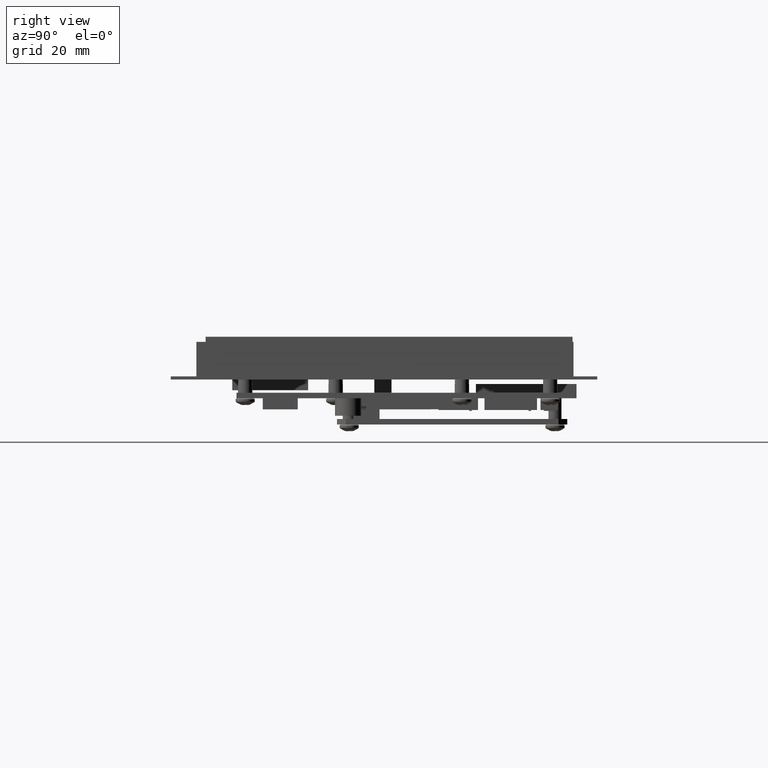
[diagram: clean part render]
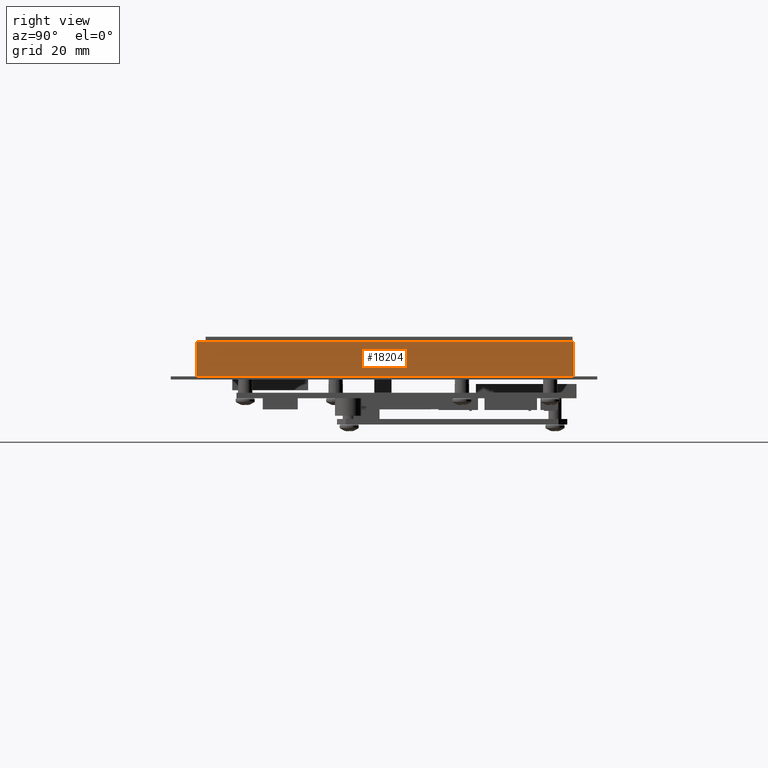
[diagram: same view with one face highlighted and labeled with its STEP entity id]
A machine part, right view. The second image highlights one B-rep face of the part: STEP entity #18204.
In plain terms, the highlighted planar face has unit normal (-1, 0, 0).
Its self-contained STEP definition (entity closure, byte-faithful):
#778 = EDGE_CURVE ( 'NONE', #8459, #8420, #2152, .T. ) ;
#779 = EDGE_CURVE ( 'NONE', #8453, #8459, #2151, .T. ) ;
#1301 = VECTOR ( 'NONE', #10907, 39.37007874015748100 ) ;
#1318 = VECTOR ( 'NONE', #11003, 39.37007874015748100 ) ;
#2148 = CARTESIAN_POINT ( 'NONE',  ( 3.279527559055118100, 2.153543307086614300, 0.3937007874015748300 ) ) ;
#2151 = LINE ( 'NONE', #2158, #19386 ) ;
#2152 = LINE ( 'NONE', #2148, #19385 ) ;
#2157 = DIRECTION ( 'NONE',  ( -0.0000000000000000000, -0.0000000000000000000, -1.000000000000000000 ) ) ;
#2158 = CARTESIAN_POINT ( 'NONE',  ( 3.279527559055118100, 2.153543307086614300, 0.3937007874015748300 ) ) ;
#2160 = DIRECTION ( 'NONE',  ( -0.0000000000000000000, 1.000000000000000000, -0.0000000000000000000 ) ) ;
#5975 = AXIS2_PLACEMENT_3D ( 'NONE', #13052, #13063, #13064 ) ;
#8420 = VERTEX_POINT ( 'NONE', #9333 ) ;
#8450 = VERTEX_POINT ( 'NONE', #9354 ) ;
#8453 = VERTEX_POINT ( 'NONE', #9356 ) ;
#8459 = VERTEX_POINT ( 'NONE', #9360 ) ;
#9333 = CARTESIAN_POINT ( 'NONE',  ( 3.279527559055118100, 2.153543307086614300, 0.0000000000000000000 ) ) ;
#9354 = CARTESIAN_POINT ( 'NONE',  ( 3.279527559055118100, -2.153543307086614800, 0.0000000000000000000 ) ) ;
#9356 = CARTESIAN_POINT ( 'NONE',  ( 3.279527559055118100, -2.153543307086614800, 0.3937007874015748300 ) ) ;
#9360 = CARTESIAN_POINT ( 'NONE',  ( 3.279527559055118100, 2.153543307086614300, 0.3937007874015748300 ) ) ;
#10902 = LINE ( 'NONE', #10905, #1301 ) ;
#10905 = CARTESIAN_POINT ( 'NONE',  ( 3.279527559055118100, 2.153543307086614300, 0.0000000000000000000 ) ) ;
#10907 = DIRECTION ( 'NONE',  ( -0.0000000000000000000, 1.000000000000000000, -0.0000000000000000000 ) ) ;
#10998 = LINE ( 'NONE', #11001, #1318 ) ;
#11001 = CARTESIAN_POINT ( 'NONE',  ( 3.279527559055118100, -2.153543307086614800, 0.3937007874015748300 ) ) ;
#11003 = DIRECTION ( 'NONE',  ( -0.0000000000000000000, -0.0000000000000000000, -1.000000000000000000 ) ) ;
#13052 = CARTESIAN_POINT ( 'NONE',  ( 3.279527559055118100, 2.153543307086614300, 0.3937007874015748300 ) ) ;
#13060 = FACE_OUTER_BOUND ( 'NONE', #13830, .T. ) ;
#13061 = PLANE ( 'NONE',  #5975 ) ;
#13063 = DIRECTION ( 'NONE',  ( -1.000000000000000000, 0.0000000000000000000, 0.0000000000000000000 ) ) ;
#13064 = DIRECTION ( 'NONE',  ( 0.0000000000000000000, 0.0000000000000000000, 1.000000000000000000 ) ) ;
#13830 = EDGE_LOOP ( 'NONE', ( #15130, #15131, #15132, #15133 ) ) ;
#15130 = ORIENTED_EDGE ( 'NONE', *, *, #17928, .T. ) ;
#15131 = ORIENTED_EDGE ( 'NONE', *, *, #778, .F. ) ;
#15132 = ORIENTED_EDGE ( 'NONE', *, *, #779, .F. ) ;
#15133 = ORIENTED_EDGE ( 'NONE', *, *, #17941, .T. ) ;
#17928 = EDGE_CURVE ( 'NONE', #8450, #8420, #10902, .T. ) ;
#17941 = EDGE_CURVE ( 'NONE', #8453, #8450, #10998, .T. ) ;
#18204 = ADVANCED_FACE ( 'NONE', ( #13060 ), #13061, .F. ) ;
#19385 = VECTOR ( 'NONE', #2157, 39.37007874015748100 ) ;
#19386 = VECTOR ( 'NONE', #2160, 39.37007874015748100 ) ;